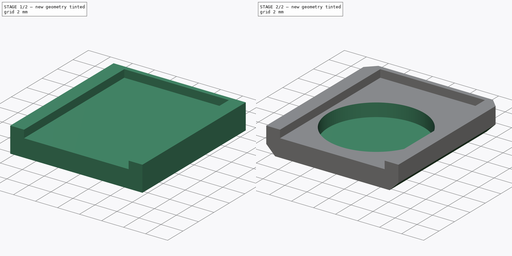
[diagram: build sequence overview — one tinted view per stage of 2, left to right]
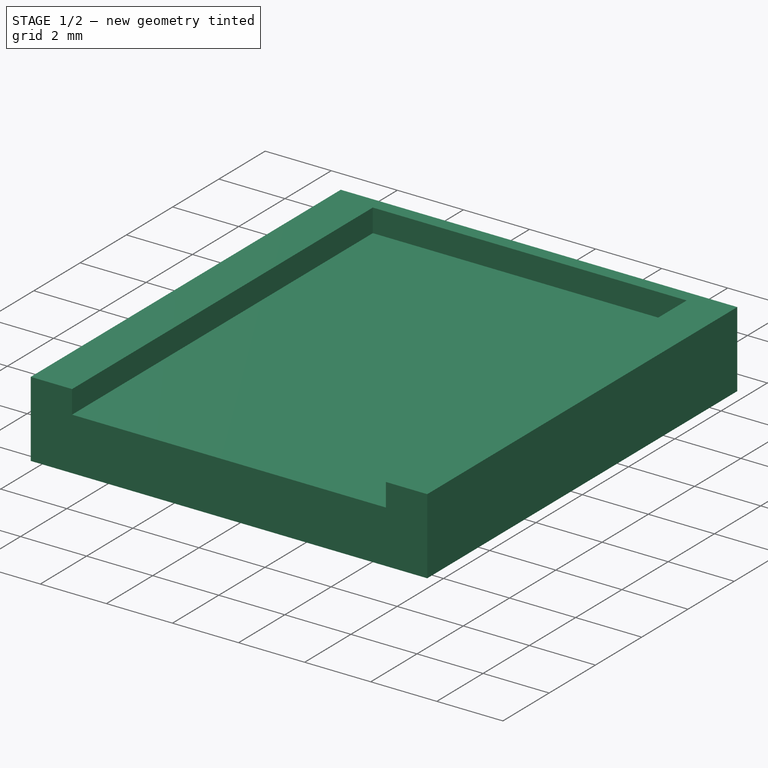
[diagram: stage 1 of 2 — iso view after this stage's code; geometry added in this stage tinted green]
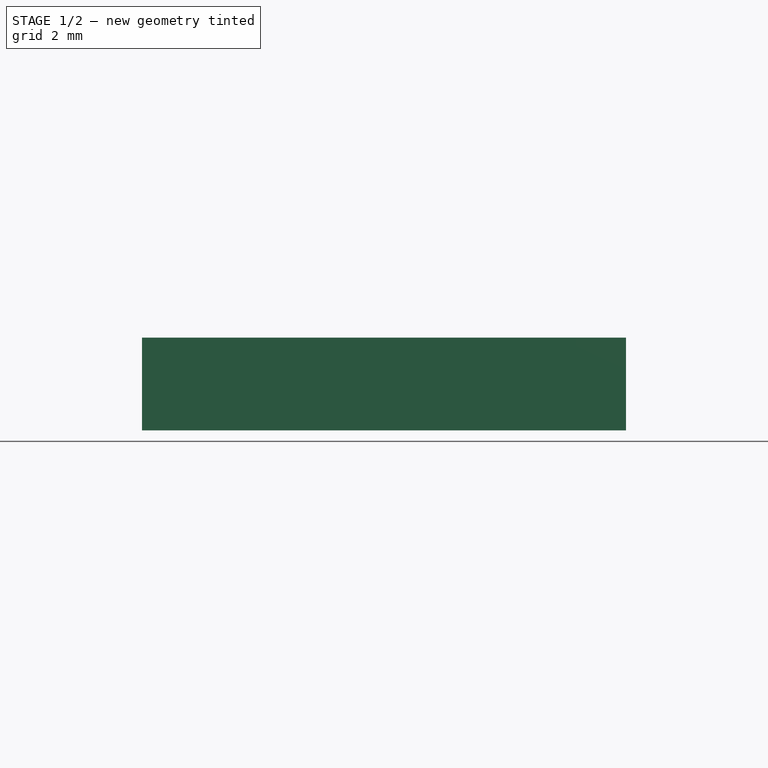
[diagram: stage 1 of 2 — front view after this stage's code; geometry added in this stage tinted green]
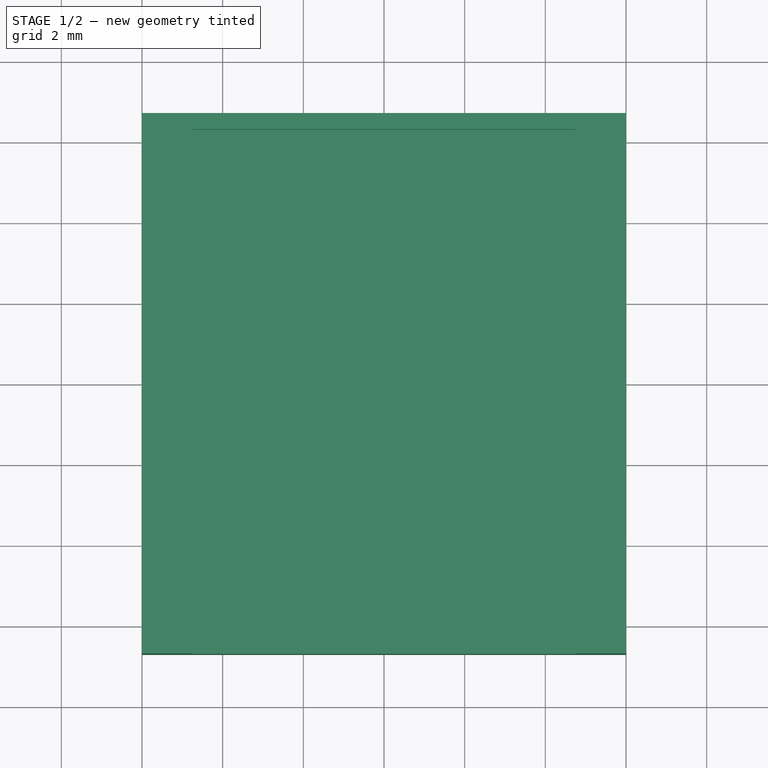
[diagram: stage 1 of 2 — top view after this stage's code; geometry added in this stage tinted green]
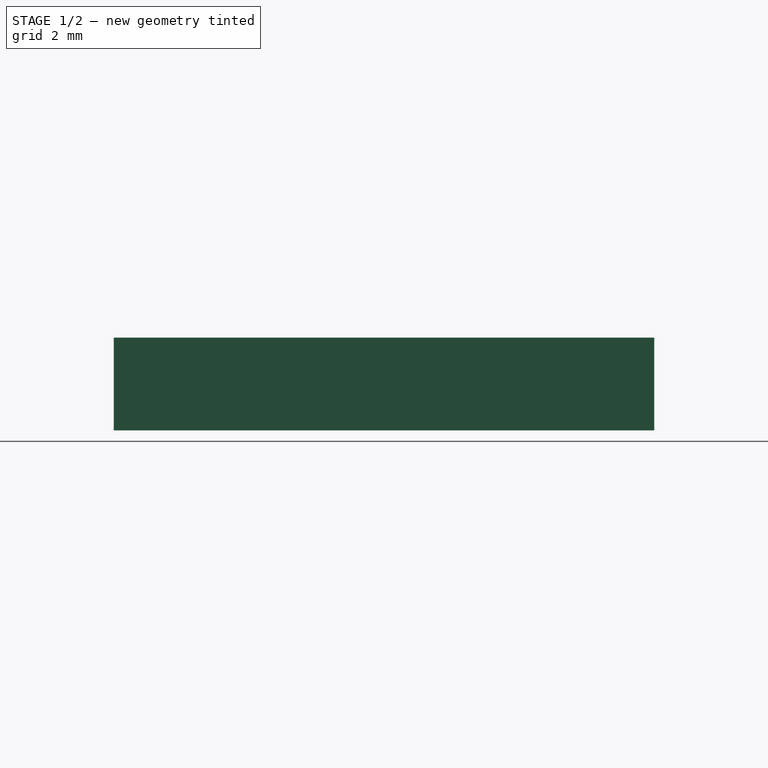
[diagram: stage 1 of 2 — right view after this stage's code; geometry added in this stage tinted green]
FCSTD DOCUMENT  (FreeCAD 0.18.4R)
Label: USBPlugSupport
License: All rights reserved
LicenseURL: http://en.wikipedia.org/wiki/All_rights_reserved
objects: Sketcher::SketchObject×4, PartDesign::Pocket×2, PartDesign::Pad×1, PartDesign::Chamfer×1, PartDesign::Body×1, App::Part×1
note: 12 computed .brp shape members not serialized (recipe doc carries the construction recipe); baked Part::Feature solids carry a one-line shape summary decoded from their .brp

FEATURE [Sketcher::SketchObject] Sketch
  MapMode = 5
  Support = -> [XY_Plane001]
  sketch-geometry (9):
    g0: LineSegment StartX=-6 StartY=6.7 StartZ=0 EndX=6 EndY=6.7 EndZ=0
    g1: LineSegment StartX=6 StartY=6.7 StartZ=0 EndX=6 EndY=-6.7 EndZ=0
    g2: LineSegment StartX=6 StartY=-6.7 StartZ=0 EndX=-6 EndY=-6.7 EndZ=0
    g3: LineSegment StartX=-6 StartY=-6.7 StartZ=0 EndX=-6 EndY=6.7 EndZ=0
    g4: LineSegment StartX=-4.75 StartY=-6.7 StartZ=0 EndX=-4.75 EndY=6.3 EndZ=0
    g5: LineSegment StartX=-4.75 StartY=6.3 StartZ=0 EndX=4.75 EndY=6.3 EndZ=0
    g6: LineSegment StartX=4.75 StartY=6.3 StartZ=0 EndX=4.75 EndY=-6.7 EndZ=0
    g7: LineSegment [constr] StartX=-4.75 StartY=6.3 StartZ=0 EndX=-6 EndY=6.3 EndZ=0
    g8: LineSegment [constr] StartX=4.75 StartY=6.3 StartZ=0 EndX=6 EndY=6.3 EndZ=0
  constraints (27):
    c: Coincident(g0,g1)
    c: Coincident(g1,g2)
    c: Coincident(g2,g3)
    c: Coincident(g3,g0)
    c: Horizontal(g0)
    c: Horizontal(g2)
    c: Vertical(g1)
    c: Vertical(g3)
    c: PointOnObject(g4,g2)
    c: Vertical(g4)
    c: Horizontal(g5)
    c: Coincident(g5,g6)
    c: PointOnObject(g6,g2)
    c: Vertical(g6)
    c: PointOnObject(g7,g3)
    c: Horizontal(g7)
    c: Coincident(g8,g5)
    c: PointOnObject(g8,g1)
    c: Horizontal(g8)
    c: Equal(g7,g8)
    c: DistanceX(g0,g0) = 12
    c: DistanceY(g1,g8) = 13
    c: Coincident(g4,g5)
    c: Coincident(g7,g4)
    c: DistanceY(g8,g0) = 0.4
    c: DistanceX(g5,g5) = 9.5
    c: Symmetric(g2,g0,g-1)
FEATURE [Sketcher::SketchObject] Sketch001
  ExternalGeometry = -> [Sketch]
  MapMode = 5
  Support = -> [XY_Plane001]
  sketch-geometry (4):
    g0: LineSegment StartX=-6 StartY=6.7 StartZ=0 EndX=6 EndY=6.7 EndZ=0
    g1: LineSegment StartX=6 StartY=6.7 StartZ=0 EndX=6 EndY=-6.7 EndZ=0
    g2: LineSegment StartX=6 StartY=-6.7 StartZ=0 EndX=-6 EndY=-6.7 EndZ=0
    g3: LineSegment StartX=-6 StartY=-6.7 StartZ=0 EndX=-6 EndY=6.7 EndZ=0
  constraints (10):
    c: Coincident(g0,g1)
    c: Coincident(g1,g2)
    c: Coincident(g2,g3)
    c: Coincident(g3,g0)
    c: Horizontal(g0)
    c: Horizontal(g2)
    c: Vertical(g1)
    c: Vertical(g3)
    c: Coincident(g0,g-3)
    c: Coincident(g1,g-4)
FEATURE [PartDesign::Pad] Pad
  Length = 2.3
  Length2 = 100
  Profile = -> Sketch001
  Type = 0
FEATURE [Sketcher::SketchObject] Sketch002
  AttachmentOffset = pos=(0,0,2.3) rot=(0,0,1;0rad)
  ExternalGeometry = -> [Sketch]
  MapMode = 5
  Placement = pos=(0,0,2.3) rot=(0,0,1;0rad)
  Support = -> [XY_Plane001]
  expr: AttachmentOffset.Base.z = Sketch001.Placement.Base.z + Pad.Length
  sketch-geometry (4):
    g0: LineSegment StartX=4.75 StartY=-6.7 StartZ=0 EndX=4.75 EndY=6.3 EndZ=0
    g1: LineSegment StartX=4.75 StartY=6.3 StartZ=0 EndX=-4.75 EndY=6.3 EndZ=0
    g2: LineSegment StartX=-4.75 StartY=6.3 StartZ=0 EndX=-4.75 EndY=-6.7 EndZ=0
    g3: LineSegment StartX=-4.75 StartY=-6.7 StartZ=0 EndX=4.75 EndY=-6.7 EndZ=0
  constraints (8):
    c: Coincident(g0,g-4)
    c: Coincident(g0,g1)
    c: Coincident(g1,g-3)
    c: Coincident(g1,g2)
    c: Coincident(g2,g-3)
    c: Coincident(g0,g-4)
    c: Coincident(g3,g2)
    c: Coincident(g3,g0)
FEATURE [Sketcher::SketchObject] Sketch003
  AttachmentOffset = pos=(0,0,0.4) rot=(0,0,1;0rad)
  ExternalGeometry = -> [Sketch]
  MapMode = 5
  Placement = pos=(0,0,0.4) rot=(0,0,1;0rad)
  Support = -> [XY_Plane001]
  sketch-geometry (2):
    g0: Circle CenterX=0 CenterY=-1 CenterZ=0 NormalX=0 NormalY=0 NormalZ=1 AngleXU=0 Radius=4.35
    g1: LineSegment [constr] StartX=4.35 StartY=6.3 StartZ=0 EndX=4.35 EndY=-6.7 EndZ=0
  constraints (7):
    c: PointOnObject(g1,g-5)
    c: PointOnObject(g1,g-6)
    c: Vertical(g1)
    c: Tangent(g0,g1)
    c: DistanceX(g1,g-5) = 0.4
    c: PointOnObject(g0,g-2)
    c: DistanceY(g0,g-5) = 7.3
FEATURE [PartDesign::Pocket] Pocket001
  BaseFeature = -> Pad
  Length = 0.7
  Length2 = 100
  Profile = -> Sketch002
  Type = 0
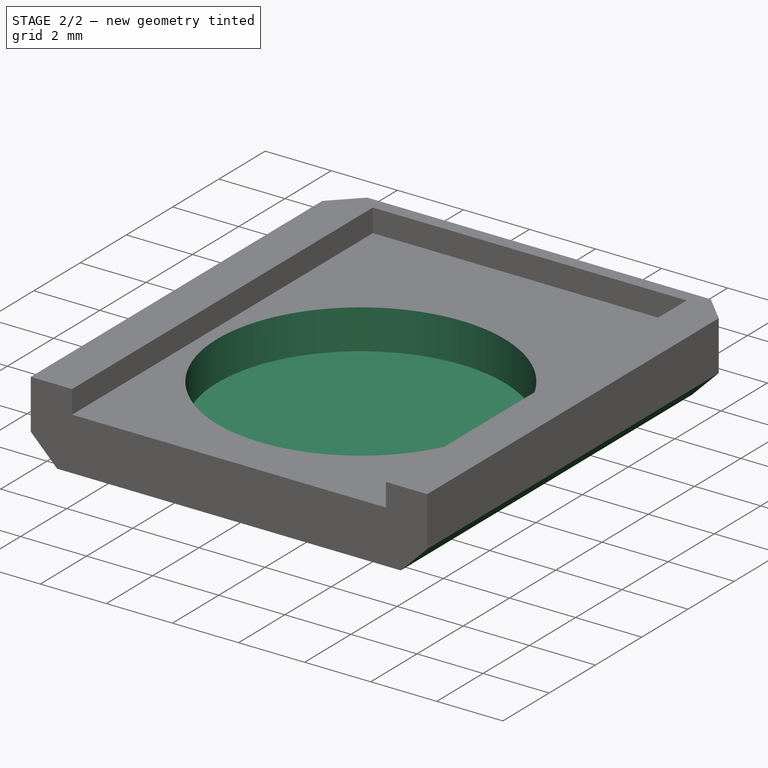
[diagram: stage 2 of 2 — iso view after this stage's code; geometry added in this stage tinted green]
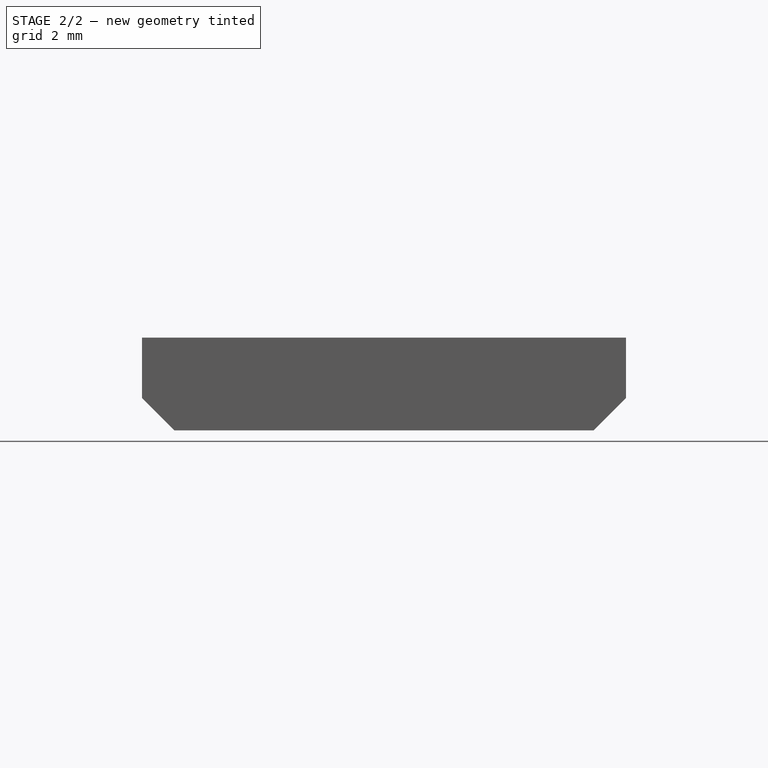
[diagram: stage 2 of 2 — front view after this stage's code; geometry added in this stage tinted green]
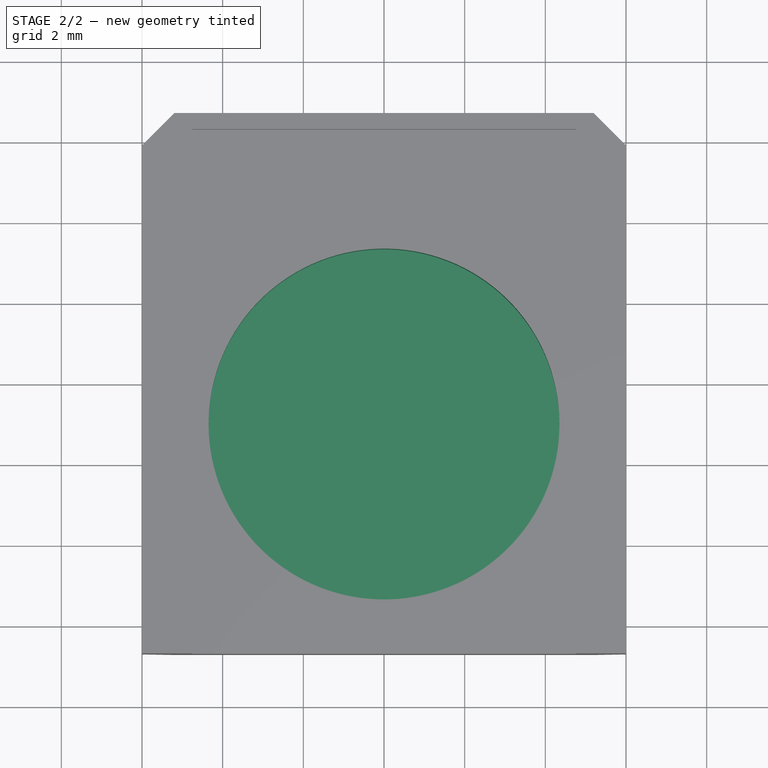
[diagram: stage 2 of 2 — top view after this stage's code; geometry added in this stage tinted green]
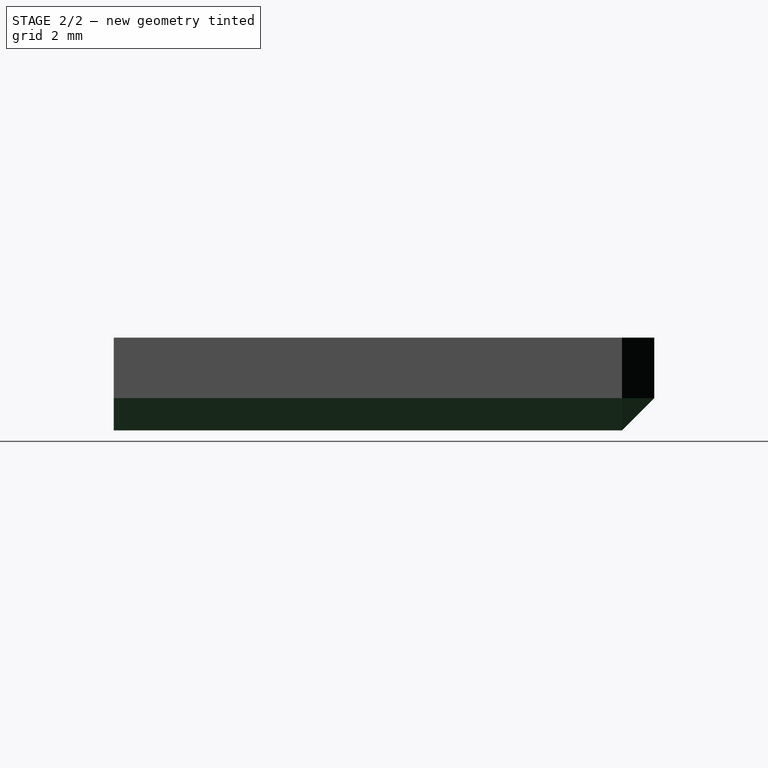
[diagram: stage 2 of 2 — right view after this stage's code; geometry added in this stage tinted green]
FEATURE [PartDesign::Pocket] Pocket
  BaseFeature = -> Pocket001
  Length = 5
  Length2 = 100
  Profile = -> Sketch003
  Reversed = true
  Type = 0
FEATURE [PartDesign::Chamfer] Chamfer
  Base = -> Pocket [Edge9,Edge3,Edge2,Edge1,Edge6]
  BaseFeature = -> Pocket
  Size = 0.8
FEATURE [PartDesign::Body] Body
  Group = -> [Sketch,Sketch001,Pad,Sketch002,Sketch003,Pocket001,Pocket,Chamfer]
  Origin = -> Origin001
  Tip = -> Chamfer
FEATURE [App::Part] Part
  Group = -> [Body]
  Origin = -> Origin
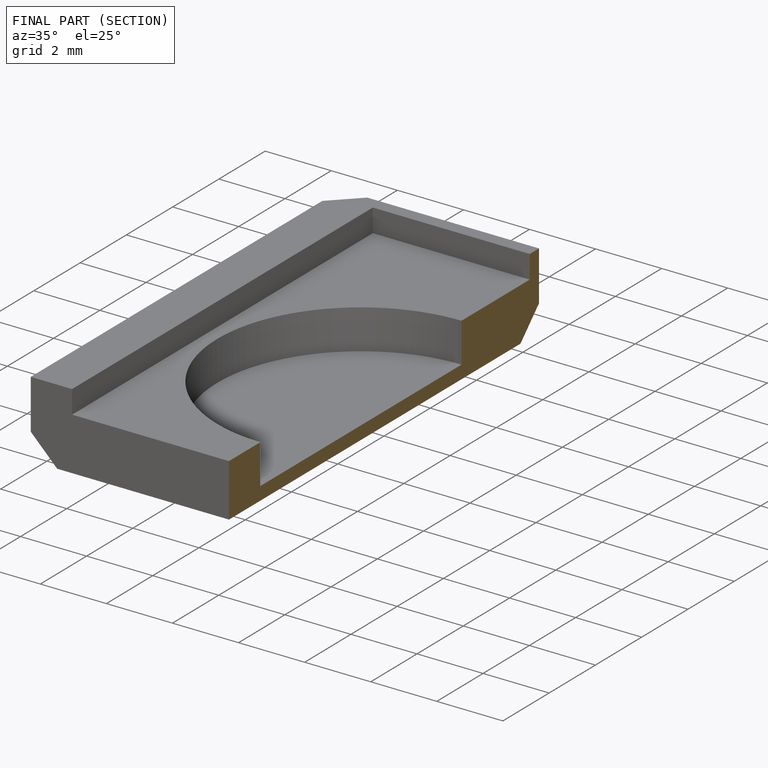
[diagram: finished part — half-section view (interior)]
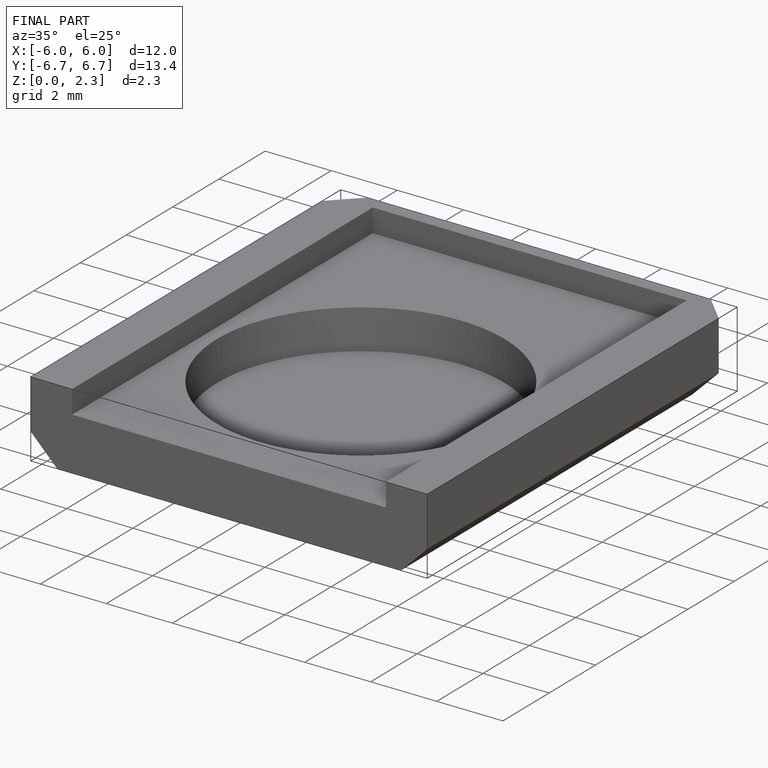
[diagram: finished part — iso view with bounding-box wireframe]
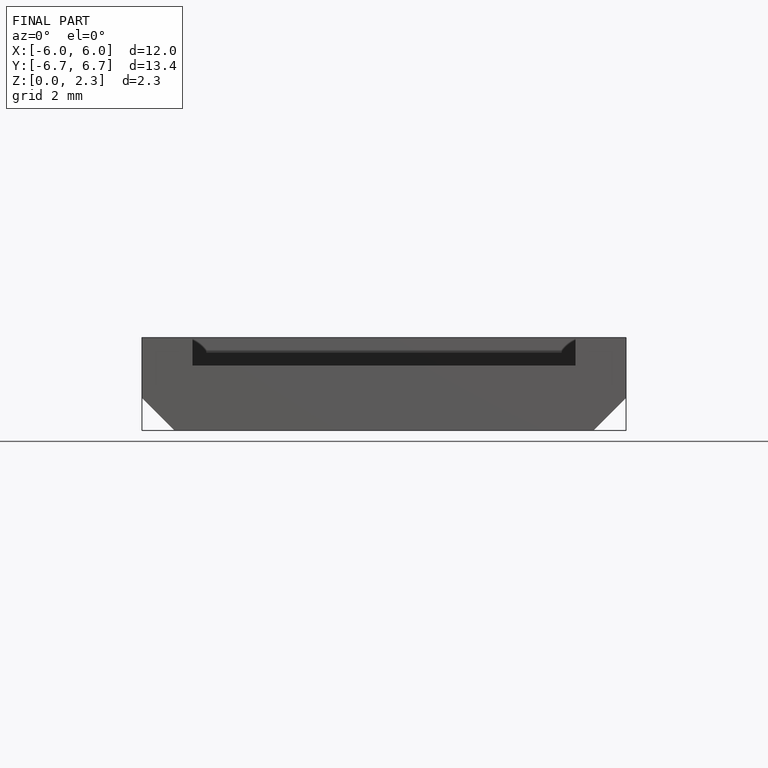
[diagram: finished part — front view with bounding-box wireframe]
